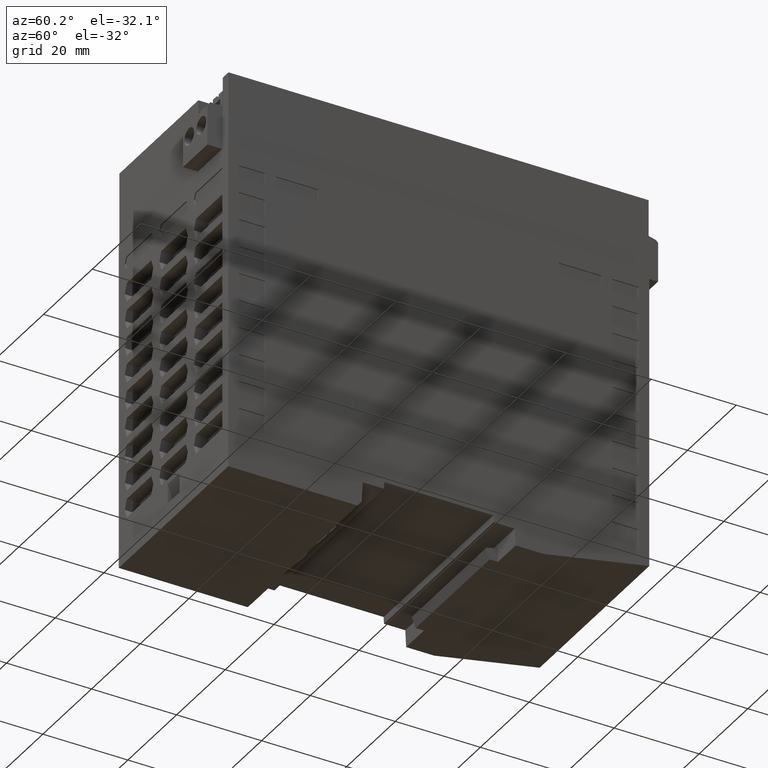
[diagram: clean part render]
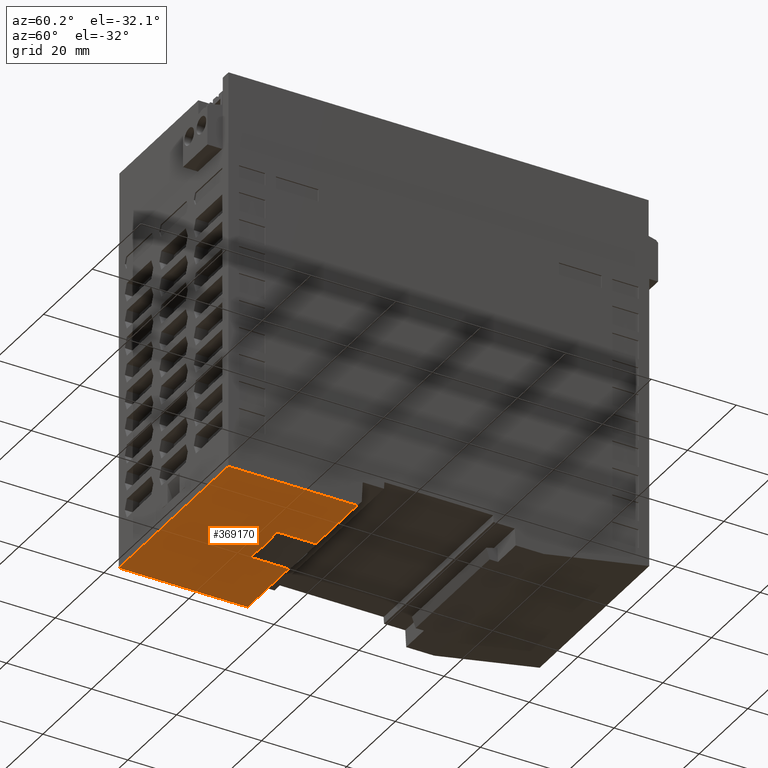
[diagram: same view with one face highlighted and labeled with its STEP entity id]
A machine part, auxiliary view. The second image highlights one B-rep face of the part: STEP entity #369170.
In plain terms, the highlighted planar face has unit normal (-0, 0, 1).
Its self-contained STEP definition (entity closure, byte-faithful):
#139780=CARTESIAN_POINT('',(29.,-5.99999999999996,-19.1982991225571));
#139790=VERTEX_POINT('',#139780);
#140440=CARTESIAN_POINT('',(29.,-5.99999999999997,-49.5));
#140450=VERTEX_POINT('',#140440);
#140480=CARTESIAN_POINT('',(29.,-5.99999999999997,0.));
#140490=DIRECTION('',(0.,0.,1.));
#140500=VECTOR('',#140490,1.);
#140510=LINE('',#140480,#140500);
#140520=EDGE_CURVE('',#140450,#139790,#140510,.T.);
#177090=CARTESIAN_POINT('',(-16.,-5.99999999999997,-49.5));
#177100=VERTEX_POINT('',#177090);
#177130=CARTESIAN_POINT('',(0.,-5.99999999999997,-49.5));
#177140=DIRECTION('',(-1.,0.,0.));
#177150=VECTOR('',#177140,1.);
#177160=LINE('',#177130,#177150);
#177170=EDGE_CURVE('',#140450,#177100,#177160,.T.);
#208530=CARTESIAN_POINT('',(-16.,-5.99999999999996,-19.1725907642014));
#208540=VERTEX_POINT('',#208530);
#208570=CARTESIAN_POINT('',(-16.,-5.99999999999997,0.));
#208580=DIRECTION('',(0.,0.,-1.));
#208590=VECTOR('',#208580,1.);
#208600=LINE('',#208570,#208590);
#208610=EDGE_CURVE('',#208540,#177100,#208600,.T.);
#368610=CARTESIAN_POINT('',(6.50000000000002,-5.99999999999997,
-19.19829912255));
#368620=DIRECTION('',(0.,1.,0.));
#368630=DIRECTION('',(0.,0.,1.));
#368640=AXIS2_PLACEMENT_3D('',#368610,#368620,#368630);
#368650=PLANE('',#368640);
#368660=CARTESIAN_POINT('',(0.949408970574236,-5.99999999999997,0.));
#368670=DIRECTION('',(1.38777878078145E-16,0.,-1.));
#368680=VECTOR('',#368670,1.);
#368690=LINE('',#368660,#368680);
#368700=CARTESIAN_POINT('',(0.949408970574235,-5.99999999999999,
-19.1725907642014));
#368710=VERTEX_POINT('',#368700);
#368720=CARTESIAN_POINT('',(0.94940897057424,-5.99999999999997,
-28.2871271974932));
#368730=VERTEX_POINT('',#368720);
#368740=EDGE_CURVE('',#368710,#368730,#368690,.T.);
#368750=ORIENTED_EDGE('',*,*,#368740,.F.);
#368760=CARTESIAN_POINT('',(0.,-5.99999999999997,-28.3362345580401));
#368770=DIRECTION('',(-0.998664984942109,-0.,-0.0516550854280406));
#368780=VECTOR('',#368770,1.);
#368790=LINE('',#368760,#368780);
#368800=CARTESIAN_POINT('',(6.50053478875555,-5.99999999999997,
-28.000000000001));
#368810=VERTEX_POINT('',#368800);
#368820=EDGE_CURVE('',#368810,#368730,#368790,.T.);
#368830=ORIENTED_EDGE('',*,*,#368820,.T.);
#368840=CARTESIAN_POINT('',(0.,-5.99999999999997,-27.663765441962));
#368850=DIRECTION('',(-0.998664984942109,0.,0.0516550854280403));
#368860=VECTOR('',#368850,1.);
#368870=LINE('',#368840,#368860);
#368880=CARTESIAN_POINT('',(12.0516606069762,-5.99999999999997,
-28.2871271974952));
#368890=VERTEX_POINT('',#368880);
#368900=EDGE_CURVE('',#368890,#368810,#368870,.T.);
#368910=ORIENTED_EDGE('',*,*,#368900,.T.);
#368920=CARTESIAN_POINT('',(12.0516606069762,-5.99999999999997,0.));
#368930=DIRECTION('',(1.38777878078145E-16,0.,-1.));
#368940=VECTOR('',#368930,1.);
#368950=LINE('',#368920,#368940);
#368960=CARTESIAN_POINT('',(12.0516606069762,-5.99999999999999,
-19.1982991225571));
#368970=VERTEX_POINT('',#368960);
#368980=EDGE_CURVE('',#368970,#368890,#368950,.T.);
#368990=ORIENTED_EDGE('',*,*,#368980,.T.);
#369000=CARTESIAN_POINT('',(0.,-5.99999999999996,-19.1982991225571));
#369010=DIRECTION('',(1.,0.,0.));
#369020=VECTOR('',#369010,1.);
#369030=LINE('',#369000,#369020);
#369040=EDGE_CURVE('',#368970,#139790,#369030,.T.);
#369050=ORIENTED_EDGE('',*,*,#369040,.F.);
#369060=ORIENTED_EDGE('',*,*,#140520,.T.);
#369070=ORIENTED_EDGE('',*,*,#177170,.F.);
#369080=ORIENTED_EDGE('',*,*,#208610,.T.);
#369090=CARTESIAN_POINT('',(0.,-5.99999999999996,-19.1725907642014));
#369100=DIRECTION('',(-1.,0.,0.));
#369110=VECTOR('',#369100,1.);
#369120=LINE('',#369090,#369110);
#369130=EDGE_CURVE('',#368710,#208540,#369120,.T.);
#369140=ORIENTED_EDGE('',*,*,#369130,.T.);
#369150=EDGE_LOOP('',(#369140,#369080,#369070,#369060,#369050,#368990,
#368910,#368830,#368750));
#369160=FACE_OUTER_BOUND('',#369150,.T.);
#369170=ADVANCED_FACE('',(#369160),#368650,.F.);